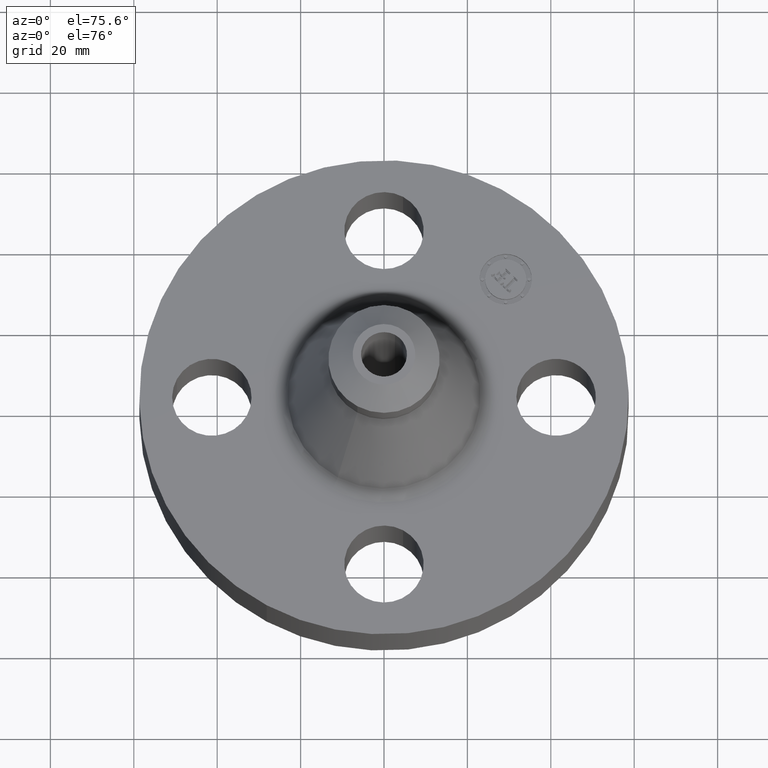
[diagram: clean part render]
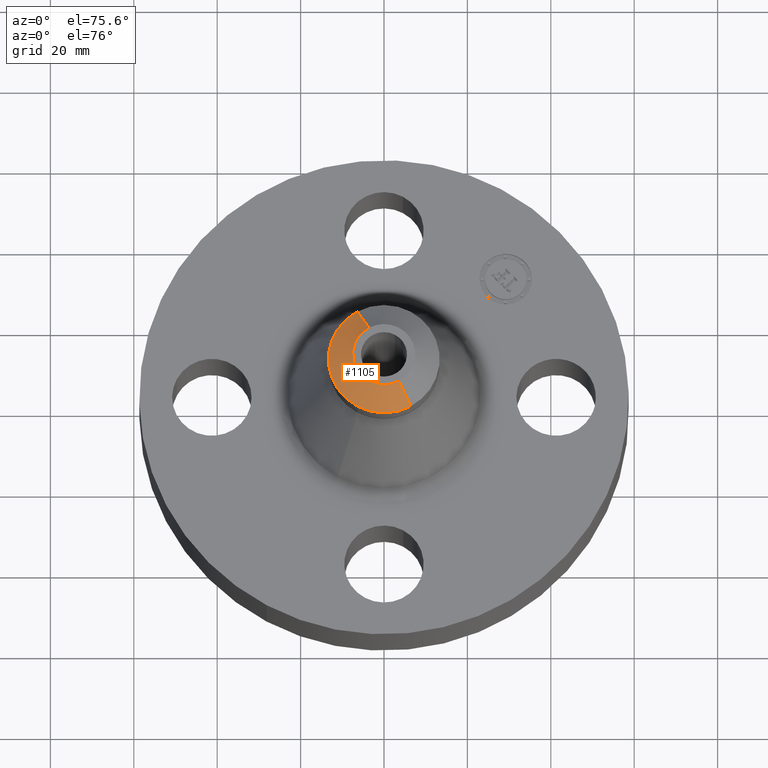
[diagram: same view with one face highlighted and labeled with its STEP entity id]
A machine part, auxiliary view. The second image highlights one B-rep face of the part: STEP entity #1105.
In plain terms, the highlighted conical surface has half-angle 52.5 deg.
Its self-contained STEP definition (entity closure, byte-faithful):
#775=AXIS2_PLACEMENT_3D('Circle Axis2P3D',#773,#774,$) ;
#1084=AXIS2_PLACEMENT_3D('Cone Axis2P3D',#1081,#1082,#1083) ;
#1088=AXIS2_PLACEMENT_3D('Circle Axis2P3D',#1086,#1087,$) ;
#1095=AXIS2_PLACEMENT_3D('Circle Axis2P3D',#1093,#1094,$) ;
#768=CARTESIAN_POINT('Vertex',(0.141785384287,-0.259536405056,2.25000000001)) ;
#770=CARTESIAN_POINT('Vertex',(-0.141785384287,0.259536405056,2.25000000001)) ;
#773=CARTESIAN_POINT('Axis2P3D Location',(-1.28117289306E-011,-3.53229256868E-012,2.25000000001)) ;
#1040=CARTESIAN_POINT('Line Origine',(-0.196741896028,0.360133625026,2.1620413678)) ;
#1044=CARTESIAN_POINT('Vertex',(-0.251698407768,0.460730844994,2.07408273559)) ;
#1047=CARTESIAN_POINT('Line Origine',(0.196741896028,-0.360133625026,2.1620413678)) ;
#1051=CARTESIAN_POINT('Vertex',(0.251698407769,-0.460730844996,2.07408273558)) ;
#1081=CARTESIAN_POINT('Axis2P3D Location',(0.,0.,2.25000000001)) ;
#1086=CARTESIAN_POINT('Axis2P3D Location',(0.,0.,2.07408273558)) ;
#1090=CARTESIAN_POINT('Vertex',(-0.251698407768,-0.460730844994,2.07408273559)) ;
#1093=CARTESIAN_POINT('Axis2P3D Location',(0.,0.,2.07408273558)) ;
#774=DIRECTION('Axis2P3D Direction',(0.,0.,-0.0393700787402)) ;
#1041=DIRECTION('Vector Direction',(-0.014974561121,0.02741075027,-0.023966985394)) ;
#1048=DIRECTION('Vector Direction',(0.014974561121,-0.02741075027,-0.023966985394)) ;
#1082=DIRECTION('Axis2P3D Direction',(-0.,-0.,-0.0393700787402)) ;
#1083=DIRECTION('Axis2P3D XDirection',(0.0188750212049,-0.0345504945626,0.)) ;
#1087=DIRECTION('Axis2P3D Direction',(-0.,0.,-0.0393700787402)) ;
#1094=DIRECTION('Axis2P3D Direction',(-0.,0.,-0.0393700787402)) ;
#1042=VECTOR('Line Direction',#1041,0.0393700787402) ;
#1049=VECTOR('Line Direction',#1048,0.0393700787402) ;
#1099=ORIENTED_EDGE('',*,*,#1053,.F.) ;
#1100=ORIENTED_EDGE('',*,*,#777,.F.) ;
#1101=ORIENTED_EDGE('',*,*,#1046,.T.) ;
#1102=ORIENTED_EDGE('',*,*,#1092,.T.) ;
#1103=ORIENTED_EDGE('',*,*,#1097,.F.) ;
#1105=ADVANCED_FACE('PartBody',(#1104),#1085,.T.) ;
#776=CIRCLE('generated circle',#775,0.295740157487) ;
#1089=CIRCLE('generated circle',#1088,0.525000000004) ;
#1096=CIRCLE('generated circle',#1095,0.525000000004) ;
#1085=CONICAL_SURFACE('Cone',#1084,0.295740157481,0.916297857297) ;
#777=EDGE_CURVE('',#771,#769,#776,.F.) ;
#1046=EDGE_CURVE('',#771,#1045,#1043,.T.) ;
#1053=EDGE_CURVE('',#769,#1052,#1050,.T.) ;
#1092=EDGE_CURVE('',#1045,#1091,#1089,.F.) ;
#1097=EDGE_CURVE('',#1052,#1091,#1096,.T.) ;
#1098=EDGE_LOOP('',(#1099,#1100,#1101,#1102,#1103)) ;
#1104=FACE_OUTER_BOUND('',#1098,.T.) ;
#1043=LINE('Line',#1040,#1042) ;
#1050=LINE('Line',#1047,#1049) ;
#769=VERTEX_POINT('',#768) ;
#771=VERTEX_POINT('',#770) ;
#1045=VERTEX_POINT('',#1044) ;
#1052=VERTEX_POINT('',#1051) ;
#1091=VERTEX_POINT('',#1090) ;